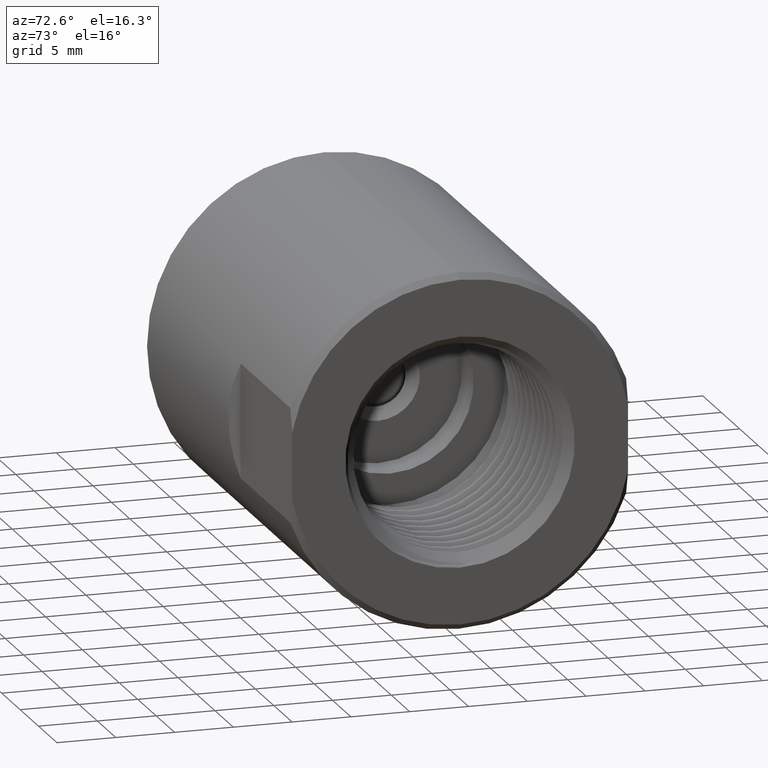
[diagram: clean part render]
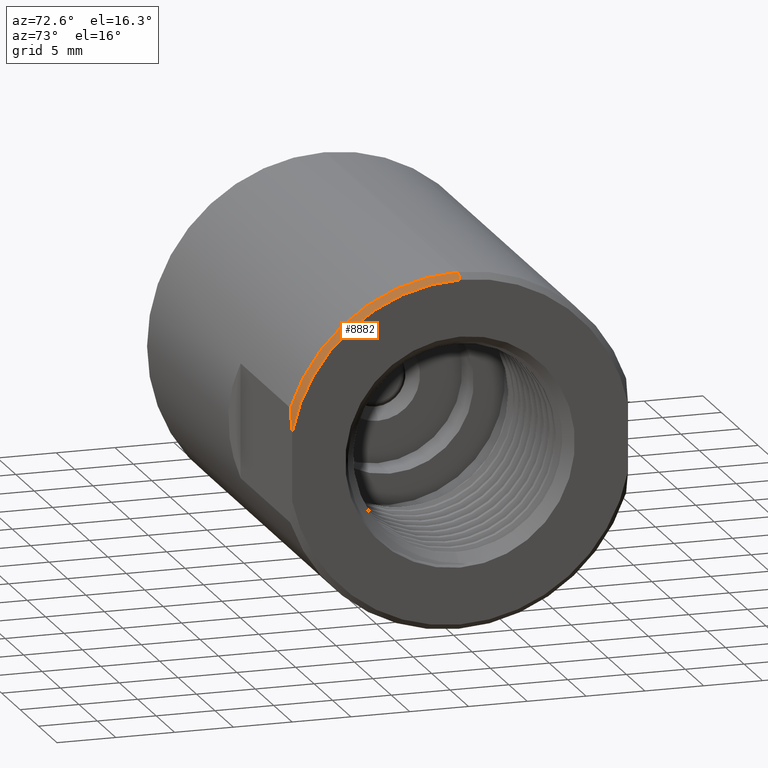
[diagram: same view with one face highlighted and labeled with its STEP entity id]
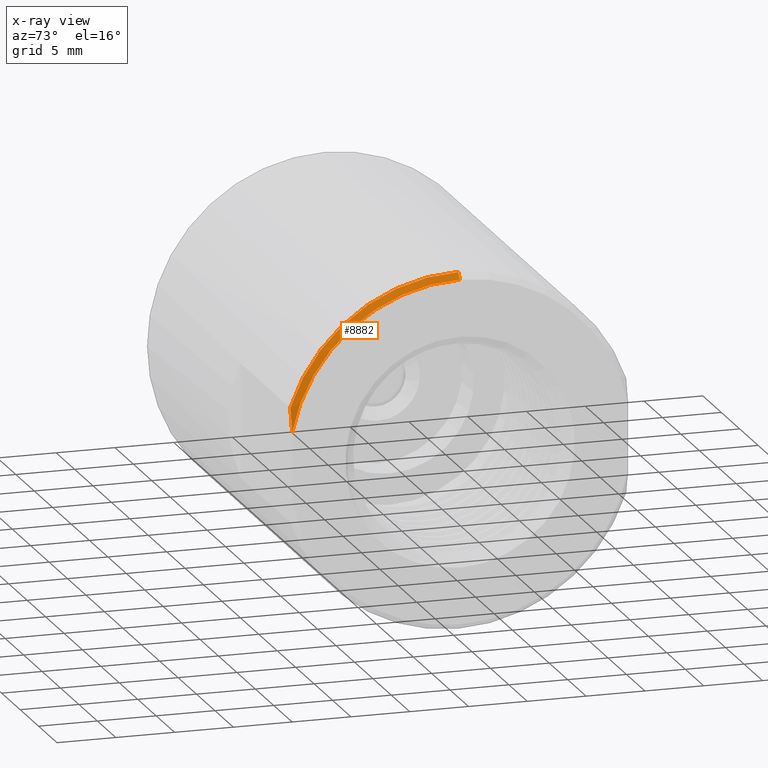
[diagram: x-ray of the same camera — body ghosted, the highlighted face saturated]
A machine part, auxiliary view. The second image highlights one B-rep face of the part: STEP entity #8882.
The next image is the same camera in x-ray: the body ghosted, the highlighted face saturated — about 0% of this face is hidden behind the body in this view.
In plain terms, the highlighted conical surface has half-angle 45 deg.
Its self-contained STEP definition (entity closure, byte-faithful):
#271 = CARTESIAN_POINT ( 'NONE',  ( 1.229999999999999982, 0.0000000000000000000, 0.5937999999999999945 ) ) ;
#607 = VERTEX_POINT ( 'NONE', #4168 ) ;
#790 = VERTEX_POINT ( 'NONE', #3618 ) ;
#1012 = CARTESIAN_POINT ( 'NONE',  ( 1.229999999999999982, 0.0000000000000000000, 0.0000000000000000000 ) ) ;
#1075 = VERTEX_POINT ( 'NONE', #3650 ) ;
#1148 = ORIENTED_EDGE ( 'NONE', *, *, #8554, .T. ) ;
#1621 = EDGE_CURVE ( 'NONE', #607, #3389, #2050, .T. ) ;
#1933 = ORIENTED_EDGE ( 'NONE', *, *, #7653, .T. ) ;
#2050 = B_SPLINE_CURVE_WITH_KNOTS ( 'NONE', 3,
 ( #3010, #10449, #2091, #5812 ),
 .UNSPECIFIED., .F., .F.,
 ( 4, 4 ),
 ( 0.03898492199573218991, 0.04100152237455442772 ),
 .UNSPECIFIED. ) ;
#2091 = CARTESIAN_POINT ( 'NONE',  ( 1.238055877778096114, -0.5623000000000000220, 0.1657659116097300045 ) ) ;
#2220 = ORIENTED_EDGE ( 'NONE', *, *, #1621, .F. ) ;
#2323 = CIRCLE ( 'NONE', #5053, 0.5737999999999999767 ) ;
#2671 = CARTESIAN_POINT ( 'NONE',  ( 1.229999999999999982, -0.5623000000000000220, 0.1908327802029828879 ) ) ;
#2871 = DIRECTION ( 'NONE',  ( 0.0000000000000000000, 0.0000000000000000000, 1.000000000000000000 ) ) ;
#2925 = VECTOR ( 'NONE', #6797, 39.37007874015748143 ) ;
#3010 = CARTESIAN_POINT ( 'NONE',  ( 1.250000000000000222, -0.5623000000000000220, 0.1143028871026449539 ) ) ;
#3366 = DIRECTION ( 'NONE',  ( -1.000000000000000000, -0.0000000000000000000, -0.0000000000000000000 ) ) ;
#3389 = VERTEX_POINT ( 'NONE', #2671 ) ;
#3618 = CARTESIAN_POINT ( 'NONE',  ( 1.250000000000000222, 0.0000000000000000000, 0.5737999999999999767 ) ) ;
#3650 = CARTESIAN_POINT ( 'NONE',  ( 1.229999999999999982, 0.0000000000000000000, 0.5937999999999999945 ) ) ;
#3944 = DIRECTION ( 'NONE',  ( 0.0000000000000000000, 0.0000000000000000000, 1.000000000000000000 ) ) ;
#4133 = ORIENTED_EDGE ( 'NONE', *, *, #8476, .F. ) ;
#4168 = CARTESIAN_POINT ( 'NONE',  ( 1.250000000000000222, -0.5623000000000000220, 0.1143028871026449539 ) ) ;
#4856 = DIRECTION ( 'NONE',  ( -1.000000000000000000, -0.0000000000000000000, -0.0000000000000000000 ) ) ;
#4885 = CARTESIAN_POINT ( 'NONE',  ( 1.250000000000000222, 0.0000000000000000000, 0.0000000000000000000 ) ) ;
#4945 = DIRECTION ( 'NONE',  ( -1.000000000000000000, -0.0000000000000000000, -0.0000000000000000000 ) ) ;
#5053 = AXIS2_PLACEMENT_3D ( 'NONE', #4885, #4945, #2871 ) ;
#5311 = DIRECTION ( 'NONE',  ( 0.0000000000000000000, 0.0000000000000000000, 1.000000000000000000 ) ) ;
#5812 = CARTESIAN_POINT ( 'NONE',  ( 1.229999999999999982, -0.5623000000000000220, 0.1908327802029828879 ) ) ;
#5826 = LINE ( 'NONE', #271, #2925 ) ;
#5835 = CONICAL_SURFACE ( 'NONE', #7386, 0.5937999999999999945, 0.7853981633974397303 ) ;
#6225 = CIRCLE ( 'NONE', #9326, 0.5937999999999999945 ) ;
#6797 = DIRECTION ( 'NONE',  ( -0.7071067811865535679, 0.0000000000000000000, 0.7071067811865414665 ) ) ;
#7141 = FACE_OUTER_BOUND ( 'NONE', #9034, .T. ) ;
#7386 = AXIS2_PLACEMENT_3D ( 'NONE', #11711, #3366, #5311 ) ;
#7653 = EDGE_CURVE ( 'NONE', #607, #790, #2323, .T. ) ;
#8476 = EDGE_CURVE ( 'NONE', #3389, #1075, #6225, .T. ) ;
#8554 = EDGE_CURVE ( 'NONE', #790, #1075, #5826, .T. ) ;
#8882 = ADVANCED_FACE ( 'NONE', ( #7141 ), #5835, .T. ) ;
#9034 = EDGE_LOOP ( 'NONE', ( #1933, #1148, #4133, #2220 ) ) ;
#9326 = AXIS2_PLACEMENT_3D ( 'NONE', #1012, #4856, #3944 ) ;
#10449 = CARTESIAN_POINT ( 'NONE',  ( 1.244823639961276873, -0.5623000000000000220, 0.1402881921593073233 ) ) ;
#11711 = CARTESIAN_POINT ( 'NONE',  ( 1.229999999999999982, 0.0000000000000000000, 0.0000000000000000000 ) ) ;